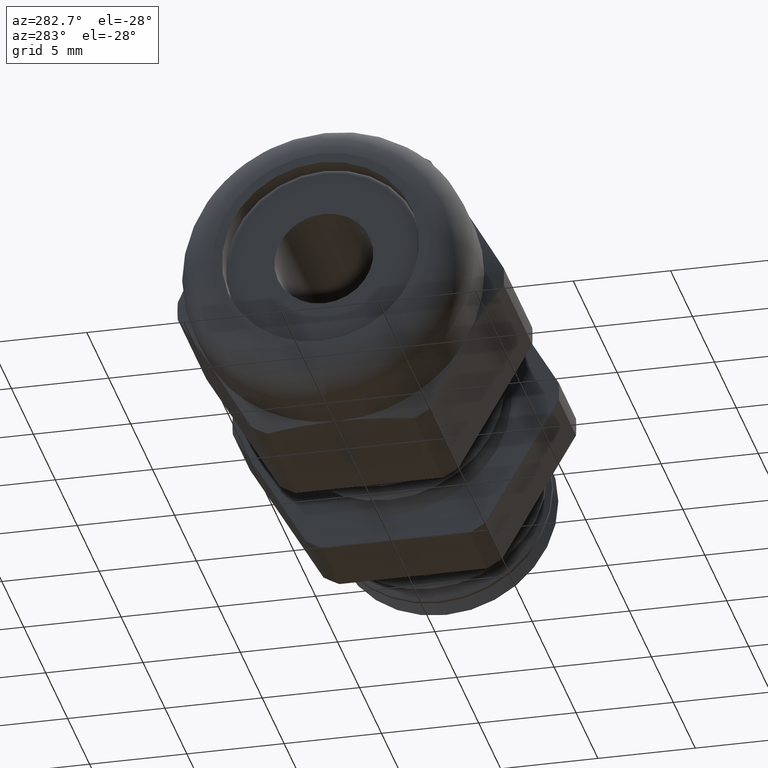
[diagram: clean part render]
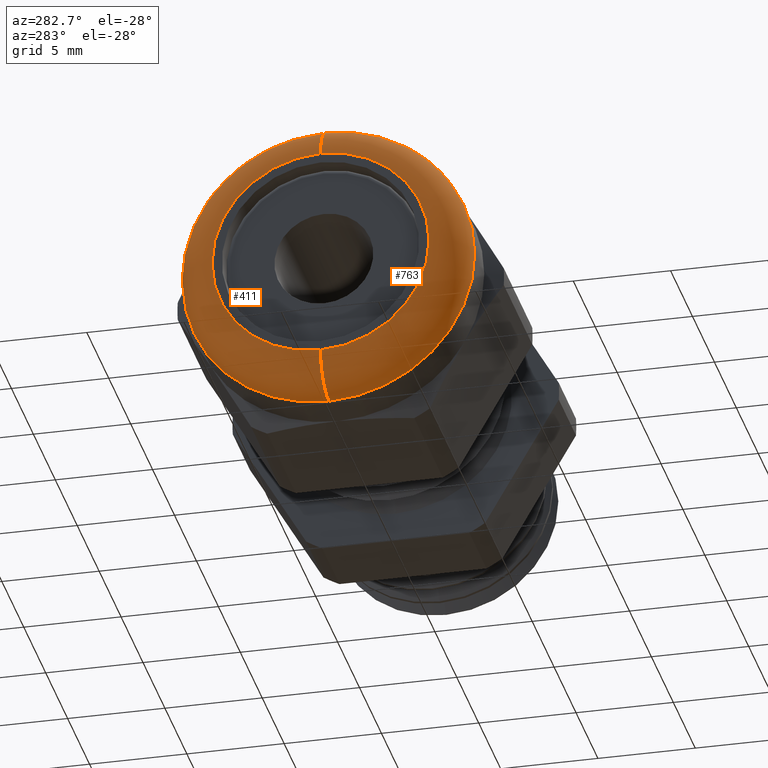
[diagram: same view with one multi-face feature highlighted, each face labeled with its STEP entity id]
A machine part, auxiliary view. The highlighted faces form ONE feature: a constant-radius fillet chain: 2 tangent blend faces with common blend radius 1.9152 mm. The faces share edges in the B-rep.
Their STEP definitions:
[1] entity #411 (Torus):
#109 = ORIENTED_EDGE ( 'NONE', *, *, #131, .F. ) ;
#131 = EDGE_CURVE ( 'NONE', #399, #436, #1130, .T. ) ;
#382 = ORIENTED_EDGE ( 'NONE', *, *, #397, .F. ) ;
#397 = EDGE_CURVE ( 'NONE', #398, #399, #1612, .T. ) ;
#398 = VERTEX_POINT ( 'NONE', #1607 ) ;
#399 = VERTEX_POINT ( 'NONE', #1606 ) ;
#401 = EDGE_CURVE ( 'NONE', #398, #403, #1601, .T. ) ;
#402 = ORIENTED_EDGE ( 'NONE', *, *, #401, .T. ) ;
#403 = VERTEX_POINT ( 'NONE', #1596 ) ;
#411 = ADVANCED_FACE ( 'NONE', ( #1642 ), #1640, .T. ) ;
#412 = EDGE_LOOP ( 'NONE', ( #382, #402, #3023, #109 ) ) ;
#436 = VERTEX_POINT ( 'NONE', #1721 ) ;
#1127 = DIRECTION ( 'NONE',  ( 0.0000000000000000000, 0.0000000000000000000, -1.000000000000000000 ) ) ;
#1128 = DIRECTION ( 'NONE',  ( 0.0000000000000000000, -1.000000000000000000, 0.0000000000000000000 ) ) ;
#1129 = AXIS2_PLACEMENT_3D ( 'NONE', #1136, #1128, #1127 ) ;
#1130 = CIRCLE ( 'NONE', #1129, 0.07540000000000003600 ) ;
#1136 = CARTESIAN_POINT ( 'NONE',  ( -0.7546000000000001600, 0.0000000000000000000, -0.2195999999999996800 ) ) ;
#1596 = CARTESIAN_POINT ( 'NONE',  ( -0.7546000000000001600, 0.0000000000000000000, 0.2949999999999997100 ) ) ;
#1597 = DIRECTION ( 'NONE',  ( 0.0000000000000000000, 1.224646799147353500E-016, 1.000000000000000000 ) ) ;
#1598 = DIRECTION ( 'NONE',  ( 0.0000000000000000000, 1.000000000000000000, -1.224646799147353200E-016 ) ) ;
#1599 = CARTESIAN_POINT ( 'NONE',  ( -0.7546000000000001600, 2.689324370927583800E-017, 0.2195999999999996800 ) ) ;
#1600 = AXIS2_PLACEMENT_3D ( 'NONE', #1599, #1598, #1597 ) ;
#1601 = CIRCLE ( 'NONE', #1600, 0.07540000000000003600 ) ;
#1606 = CARTESIAN_POINT ( 'NONE',  ( -0.8300000000000001800, 0.0000000000000000000, -0.2195999999999996800 ) ) ;
#1607 = CARTESIAN_POINT ( 'NONE',  ( -0.8300000000000001800, 3.151016214206136600E-017, 0.2195999999999996800 ) ) ;
#1608 = DIRECTION ( 'NONE',  ( 0.0000000000000000000, 0.0000000000000000000, -1.000000000000000000 ) ) ;
#1609 = DIRECTION ( 'NONE',  ( -1.000000000000000000, 0.0000000000000000000, 0.0000000000000000000 ) ) ;
#1610 = CARTESIAN_POINT ( 'NONE',  ( -0.8300000000000001800, 0.0000000000000000000, 0.0000000000000000000 ) ) ;
#1611 = AXIS2_PLACEMENT_3D ( 'NONE', #1610, #1609, #1608 ) ;
#1612 = CIRCLE ( 'NONE', #1611, 0.2195999999999996800 ) ;
#1637 = DIRECTION ( 'NONE',  ( 0.0000000000000000000, 0.0000000000000000000, -1.000000000000000000 ) ) ;
#1638 = DIRECTION ( 'NONE',  ( 1.000000000000000000, 0.0000000000000000000, 0.0000000000000000000 ) ) ;
#1639 = AXIS2_PLACEMENT_3D ( 'NONE', #1641, #1638, #1637 ) ;
#1640 = TOROIDAL_SURFACE ( 'NONE', #1639, 0.2195999999999996800, 0.07540000000000003600 ) ;
#1641 = CARTESIAN_POINT ( 'NONE',  ( -0.7546000000000001600, 0.0000000000000000000, 0.0000000000000000000 ) ) ;
#1642 = FACE_OUTER_BOUND ( 'NONE', #412, .T. ) ;
#1721 = CARTESIAN_POINT ( 'NONE',  ( -0.7546000000000001600, 3.612708057484688900E-017, -0.2949999999999997100 ) ) ;
#2680 = DIRECTION ( 'NONE',  ( 0.0000000000000000000, 0.0000000000000000000, -1.000000000000000000 ) ) ;
#2681 = DIRECTION ( 'NONE',  ( 1.000000000000000000, 0.0000000000000000000, 0.0000000000000000000 ) ) ;
#2682 = CARTESIAN_POINT ( 'NONE',  ( -0.7546000000000001600, 0.0000000000000000000, 0.0000000000000000000 ) ) ;
#2683 = AXIS2_PLACEMENT_3D ( 'NONE', #2682, #2681, #2680 ) ;
#2684 = CIRCLE ( 'NONE', #2683, 0.2949999999999997100 ) ;
#3023 = ORIENTED_EDGE ( 'NONE', *, *, #3027, .F. ) ;
#3027 = EDGE_CURVE ( 'NONE', #436, #403, #2684, .T. ) ;
[2] entity #763 (Torus):
#131 = EDGE_CURVE ( 'NONE', #399, #436, #1130, .T. ) ;
#398 = VERTEX_POINT ( 'NONE', #1607 ) ;
#399 = VERTEX_POINT ( 'NONE', #1606 ) ;
#401 = EDGE_CURVE ( 'NONE', #398, #403, #1601, .T. ) ;
#403 = VERTEX_POINT ( 'NONE', #1596 ) ;
#436 = VERTEX_POINT ( 'NONE', #1721 ) ;
#762 = EDGE_CURVE ( 'NONE', #403, #436, #2223, .T. ) ;
#763 = ADVANCED_FACE ( 'NONE', ( #2219 ), #2218, .T. ) ;
#764 = EDGE_LOOP ( 'NONE', ( #765, #766, #820, #821 ) ) ;
#765 = ORIENTED_EDGE ( 'NONE', *, *, #401, .F. ) ;
#766 = ORIENTED_EDGE ( 'NONE', *, *, #2935, .F. ) ;
#820 = ORIENTED_EDGE ( 'NONE', *, *, #131, .T. ) ;
#821 = ORIENTED_EDGE ( 'NONE', *, *, #762, .F. ) ;
#1127 = DIRECTION ( 'NONE',  ( 0.0000000000000000000, 0.0000000000000000000, -1.000000000000000000 ) ) ;
#1128 = DIRECTION ( 'NONE',  ( 0.0000000000000000000, -1.000000000000000000, 0.0000000000000000000 ) ) ;
#1129 = AXIS2_PLACEMENT_3D ( 'NONE', #1136, #1128, #1127 ) ;
#1130 = CIRCLE ( 'NONE', #1129, 0.07540000000000003600 ) ;
#1136 = CARTESIAN_POINT ( 'NONE',  ( -0.7546000000000001600, 0.0000000000000000000, -0.2195999999999996800 ) ) ;
#1596 = CARTESIAN_POINT ( 'NONE',  ( -0.7546000000000001600, 0.0000000000000000000, 0.2949999999999997100 ) ) ;
#1597 = DIRECTION ( 'NONE',  ( 0.0000000000000000000, 1.224646799147353500E-016, 1.000000000000000000 ) ) ;
#1598 = DIRECTION ( 'NONE',  ( 0.0000000000000000000, 1.000000000000000000, -1.224646799147353200E-016 ) ) ;
#1599 = CARTESIAN_POINT ( 'NONE',  ( -0.7546000000000001600, 2.689324370927583800E-017, 0.2195999999999996800 ) ) ;
#1600 = AXIS2_PLACEMENT_3D ( 'NONE', #1599, #1598, #1597 ) ;
#1601 = CIRCLE ( 'NONE', #1600, 0.07540000000000003600 ) ;
#1606 = CARTESIAN_POINT ( 'NONE',  ( -0.8300000000000001800, 0.0000000000000000000, -0.2195999999999996800 ) ) ;
#1607 = CARTESIAN_POINT ( 'NONE',  ( -0.8300000000000001800, 3.151016214206136600E-017, 0.2195999999999996800 ) ) ;
#1721 = CARTESIAN_POINT ( 'NONE',  ( -0.7546000000000001600, 3.612708057484688900E-017, -0.2949999999999997100 ) ) ;
#2213 = DIRECTION ( 'NONE',  ( 0.0000000000000000000, 0.0000000000000000000, -1.000000000000000000 ) ) ;
#2214 = DIRECTION ( 'NONE',  ( 1.000000000000000000, 0.0000000000000000000, 0.0000000000000000000 ) ) ;
#2215 = CARTESIAN_POINT ( 'NONE',  ( -0.7546000000000001600, 0.0000000000000000000, 0.0000000000000000000 ) ) ;
#2216 = AXIS2_PLACEMENT_3D ( 'NONE', #2215, #2214, #2213 ) ;
#2218 = TOROIDAL_SURFACE ( 'NONE', #2216, 0.2195999999999996800, 0.07540000000000003600 ) ;
#2219 = FACE_OUTER_BOUND ( 'NONE', #764, .T. ) ;
#2220 = DIRECTION ( 'NONE',  ( 0.0000000000000000000, 0.0000000000000000000, -1.000000000000000000 ) ) ;
#2221 = DIRECTION ( 'NONE',  ( 1.000000000000000000, 0.0000000000000000000, 0.0000000000000000000 ) ) ;
#2222 = AXIS2_PLACEMENT_3D ( 'NONE', #2227, #2221, #2220 ) ;
#2223 = CIRCLE ( 'NONE', #2222, 0.2949999999999997100 ) ;
#2227 = CARTESIAN_POINT ( 'NONE',  ( -0.7546000000000001600, 0.0000000000000000000, 0.0000000000000000000 ) ) ;
#2530 = DIRECTION ( 'NONE',  ( 0.0000000000000000000, 0.0000000000000000000, -1.000000000000000000 ) ) ;
#2531 = DIRECTION ( 'NONE',  ( -1.000000000000000000, 0.0000000000000000000, 0.0000000000000000000 ) ) ;
#2532 = CARTESIAN_POINT ( 'NONE',  ( -0.8300000000000001800, 0.0000000000000000000, 0.0000000000000000000 ) ) ;
#2533 = AXIS2_PLACEMENT_3D ( 'NONE', #2532, #2531, #2530 ) ;
#2534 = CIRCLE ( 'NONE', #2533, 0.2195999999999996800 ) ;
#2935 = EDGE_CURVE ( 'NONE', #399, #398, #2534, .T. ) ;